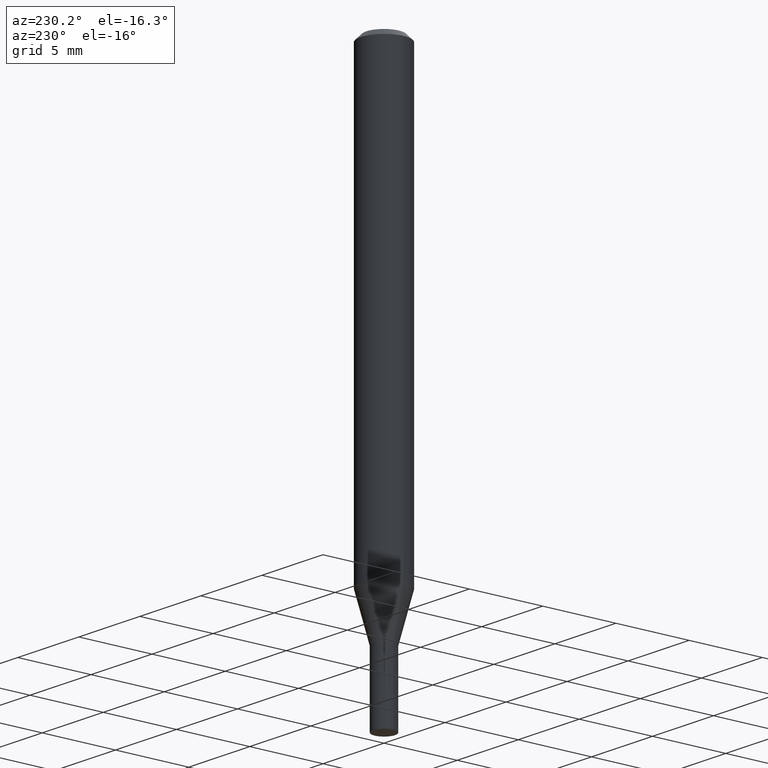
[diagram: clean part render]
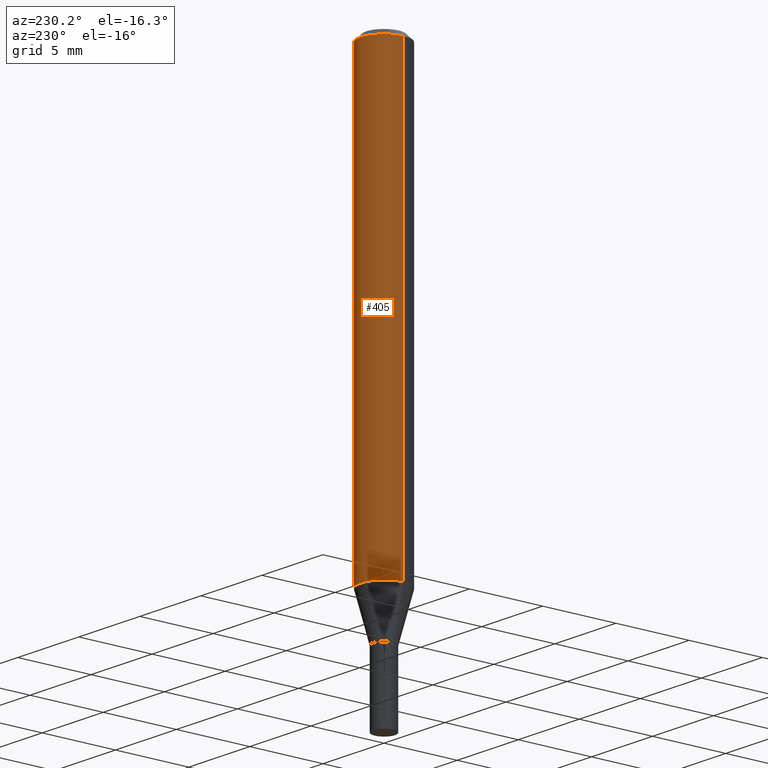
[diagram: same view with one face highlighted and labeled with its STEP entity id]
A machine part, auxiliary view. The second image highlights one B-rep face of the part: STEP entity #405.
In plain terms, the highlighted cylindrical surface (edge-blend (fillet) strip) has radius 1.5875 mm, axis along (-0, 0, 1).
Its self-contained STEP definition (entity closure, byte-faithful):
#17 = FACE_OUTER_BOUND ( 'NONE', #227, .T. ) ;
#28 = CARTESIAN_POINT ( 'NONE',  ( 2.909722286031829716E-29, -4.154312268143090689E-15, -1.189842323350227327 ) ) ;
#40 = LINE ( 'NONE', #48, #324 ) ;
#48 = CARTESIAN_POINT ( 'NONE',  ( 0.06250000000000000000, -4.364351673553916694E-16, 3.047610484872459871E-30 ) ) ;
#72 = AXIS2_PLACEMENT_3D ( 'NONE', #153, #189, #411 ) ;
#90 = ORIENTED_EDGE ( 'NONE', *, *, #301, .T. ) ;
#102 = DIRECTION ( 'NONE',  ( 1.000000000000000000, -6.982962677686266711E-15, 0.000000000000000000 ) ) ;
#115 = CYLINDRICAL_SURFACE ( 'NONE', #72, 0.06250000000000000000 ) ;
#153 = CARTESIAN_POINT ( 'NONE',  ( 0.000000000000000000, 0.000000000000000000, 0.000000000000000000 ) ) ;
#173 = AXIS2_PLACEMENT_3D ( 'NONE', #28, #450, #277 ) ;
#182 = DIRECTION ( 'NONE',  ( -2.445468806185136877E-29, 3.491481338843145188E-15, 1.000000000000000000 ) ) ;
#189 = DIRECTION ( 'NONE',  ( -2.445468806185136597E-29, 3.491481338843145583E-15, 1.000000000000000000 ) ) ;
#208 = CARTESIAN_POINT ( 'NONE',  ( -0.06250000000000000000, 4.440892098500626162E-16, -3.074334431409316114E-30 ) ) ;
#216 = VERTEX_POINT ( 'NONE', #247 ) ;
#227 = EDGE_LOOP ( 'NONE', ( #270, #90, #347, #417 ) ) ;
#244 = VERTEX_POINT ( 'NONE', #387 ) ;
#246 = DIRECTION ( 'NONE',  ( -2.445468806185136877E-29, 3.491481338843145188E-15, 1.000000000000000000 ) ) ;
#247 = CARTESIAN_POINT ( 'NONE',  ( -0.06249999999999999306, -3.710223058293028073E-15, -1.189842323350227327 ) ) ;
#256 = CIRCLE ( 'NONE', #173, 0.06250000000000000000 ) ;
#268 = VERTEX_POINT ( 'NONE', #291 ) ;
#269 = EDGE_CURVE ( 'NONE', #311, #244, #271, .T. ) ;
#270 = ORIENTED_EDGE ( 'NONE', *, *, #452, .T. ) ;
#271 = CIRCLE ( 'NONE', #463, 0.06250000000000000000 ) ;
#277 = DIRECTION ( 'NONE',  ( 1.000000000000000000, -6.982962677686262766E-15, 0.000000000000000000 ) ) ;
#288 = DIRECTION ( 'NONE',  ( -2.445468806185136597E-29, 3.491481338843145583E-15, 1.000000000000000000 ) ) ;
#291 = CARTESIAN_POINT ( 'NONE',  ( 0.06249999999999999306, -4.590747435498482358E-15, -1.189842323350227327 ) ) ;
#301 = EDGE_CURVE ( 'NONE', #216, #244, #455, .T. ) ;
#311 = VERTEX_POINT ( 'NONE', #385 ) ;
#324 = VECTOR ( 'NONE', #182, 39.37007874015748143 ) ;
#347 = ORIENTED_EDGE ( 'NONE', *, *, #269, .F. ) ;
#348 = VECTOR ( 'NONE', #246, 39.37007874015748143 ) ;
#371 = EDGE_CURVE ( 'NONE', #268, #311, #40, .T. ) ;
#385 = CARTESIAN_POINT ( 'NONE',  ( 0.06250000000000000000, -4.888073874380388472E-16, -0.01499999999999999944 ) ) ;
#387 = CARTESIAN_POINT ( 'NONE',  ( -0.06250000000000000000, -1.659253034262806268E-15, -0.01499999999999999944 ) ) ;
#405 = ADVANCED_FACE ( 'NONE', ( #17 ), #115, .T. ) ;
#411 = DIRECTION ( 'NONE',  ( 1.000000000000000000, -6.982962677686266711E-15, 4.876176775795935793E-29 ) ) ;
#417 = ORIENTED_EDGE ( 'NONE', *, *, #371, .F. ) ;
#427 = CARTESIAN_POINT ( 'NONE',  ( 3.668203209277705088E-31, -5.237222008264718399E-17, -0.01499999999999999944 ) ) ;
#450 = DIRECTION ( 'NONE',  ( -2.445468806185136597E-29, 3.491481338843145583E-15, 1.000000000000000000 ) ) ;
#452 = EDGE_CURVE ( 'NONE', #268, #216, #256, .T. ) ;
#455 = LINE ( 'NONE', #208, #348 ) ;
#463 = AXIS2_PLACEMENT_3D ( 'NONE', #427, #288, #102 ) ;